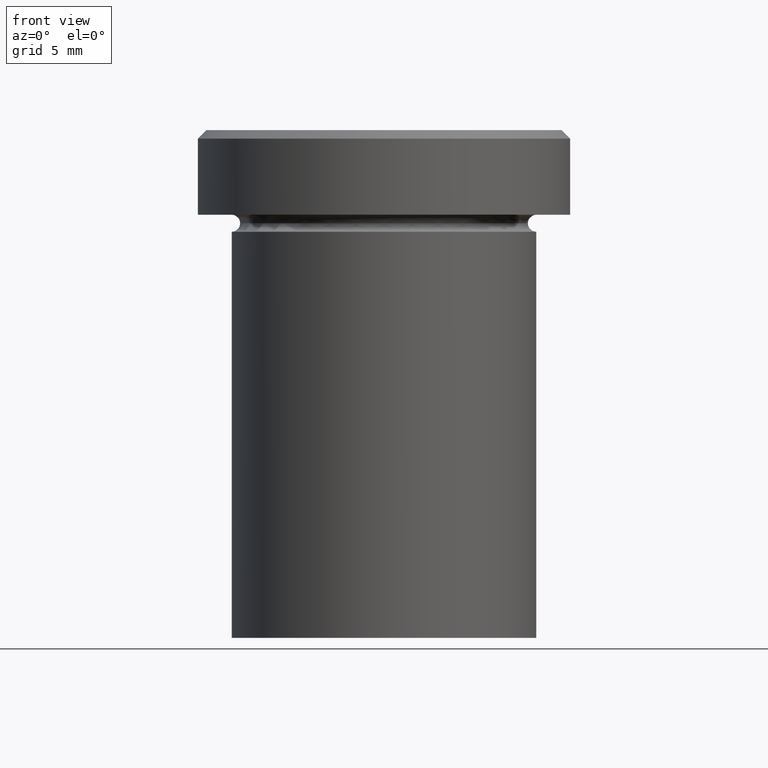
[diagram: clean part render]
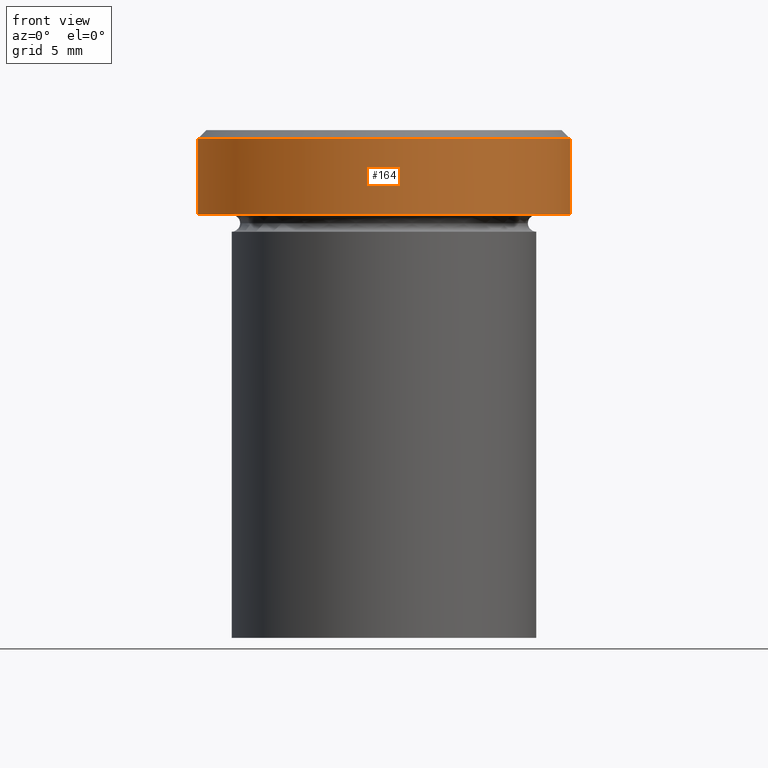
[diagram: same view with one face highlighted and labeled with its STEP entity id]
A machine part, front view. The second image highlights one B-rep face of the part: STEP entity #164.
In plain terms, the highlighted cylindrical surface (partial cylindrical patch) has radius 11 mm, axis along (-0, -0, 1).
Its self-contained STEP definition (entity closure, byte-faithful):
#5 = EDGE_LOOP ( 'NONE', ( #298, #114, #353, #203 ) ) ;
#10 = AXIS2_PLACEMENT_3D ( 'NONE', #296, #134, #262 ) ;
#38 = DIRECTION ( 'NONE',  ( 1.000000000000000000, 0.000000000000000000, 0.000000000000000000 ) ) ;
#52 = DIRECTION ( 'NONE',  ( -0.000000000000000000, -0.000000000000000000, 1.000000000000000000 ) ) ;
#70 = VERTEX_POINT ( 'NONE', #253 ) ;
#76 = CARTESIAN_POINT ( 'NONE',  ( -11.00000000000000000, 1.347111479062088405E-15, -0.5000000000000004441 ) ) ;
#77 = CIRCLE ( 'NONE', #10, 11.00000000000000000 ) ;
#114 = ORIENTED_EDGE ( 'NONE', *, *, #285, .T. ) ;
#125 = DIRECTION ( 'NONE',  ( -0.000000000000000000, -0.000000000000000000, 1.000000000000000000 ) ) ;
#131 = AXIS2_PLACEMENT_3D ( 'NONE', #189, #125, #38 ) ;
#134 = DIRECTION ( 'NONE',  ( 0.000000000000000000, 0.000000000000000000, -1.000000000000000000 ) ) ;
#145 = CARTESIAN_POINT ( 'NONE',  ( 11.00000000000000000, 0.000000000000000000, -5.000000000000000000 ) ) ;
#160 = EDGE_CURVE ( 'NONE', #70, #188, #77, .T. ) ;
#164 = ADVANCED_FACE ( 'NONE', ( #390 ), #200, .T. ) ;
#172 = CARTESIAN_POINT ( 'NONE',  ( -11.00000000000000000, 1.347111479062088405E-15, 0.000000000000000000 ) ) ;
#177 = LINE ( 'NONE', #172, #293 ) ;
#188 = VERTEX_POINT ( 'NONE', #76 ) ;
#189 = CARTESIAN_POINT ( 'NONE',  ( 0.000000000000000000, 0.000000000000000000, -5.000000000000000000 ) ) ;
#200 = CYLINDRICAL_SURFACE ( 'NONE', #370, 11.00000000000000000 ) ;
#202 = EDGE_CURVE ( 'NONE', #335, #188, #177, .T. ) ;
#203 = ORIENTED_EDGE ( 'NONE', *, *, #160, .T. ) ;
#217 = VECTOR ( 'NONE', #52, 1000.000000000000000 ) ;
#253 = CARTESIAN_POINT ( 'NONE',  ( 11.00000000000000000, 0.000000000000000000, -0.5000000000000004441 ) ) ;
#262 = DIRECTION ( 'NONE',  ( 1.000000000000000000, 0.000000000000000000, 0.000000000000000000 ) ) ;
#263 = DIRECTION ( 'NONE',  ( -0.000000000000000000, -0.000000000000000000, 1.000000000000000000 ) ) ;
#271 = VERTEX_POINT ( 'NONE', #145 ) ;
#285 = EDGE_CURVE ( 'NONE', #335, #271, #313, .T. ) ;
#291 = LINE ( 'NONE', #338, #217 ) ;
#293 = VECTOR ( 'NONE', #402, 1000.000000000000000 ) ;
#296 = CARTESIAN_POINT ( 'NONE',  ( 0.000000000000000000, 0.000000000000000000, -0.5000000000000004441 ) ) ;
#298 = ORIENTED_EDGE ( 'NONE', *, *, #202, .F. ) ;
#313 = CIRCLE ( 'NONE', #131, 11.00000000000000000 ) ;
#323 = CARTESIAN_POINT ( 'NONE',  ( -11.00000000000000000, 1.347111479062088405E-15, -5.000000000000000000 ) ) ;
#331 = CARTESIAN_POINT ( 'NONE',  ( 0.000000000000000000, 0.000000000000000000, 0.000000000000000000 ) ) ;
#335 = VERTEX_POINT ( 'NONE', #323 ) ;
#338 = CARTESIAN_POINT ( 'NONE',  ( 11.00000000000000000, 0.000000000000000000, 0.000000000000000000 ) ) ;
#353 = ORIENTED_EDGE ( 'NONE', *, *, #409, .T. ) ;
#370 = AXIS2_PLACEMENT_3D ( 'NONE', #331, #263, #394 ) ;
#390 = FACE_OUTER_BOUND ( 'NONE', #5, .T. ) ;
#394 = DIRECTION ( 'NONE',  ( 1.000000000000000000, 0.000000000000000000, 0.000000000000000000 ) ) ;
#402 = DIRECTION ( 'NONE',  ( -0.000000000000000000, -0.000000000000000000, 1.000000000000000000 ) ) ;
#409 = EDGE_CURVE ( 'NONE', #271, #70, #291, .T. ) ;